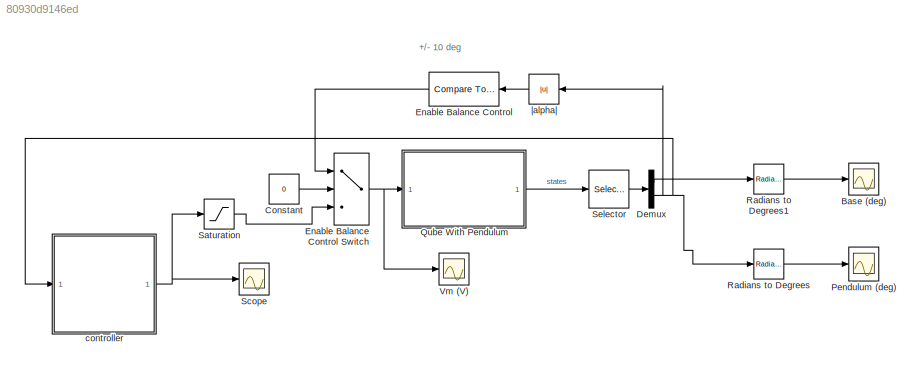
MODEL slx_80930d9146ed
KIND model
CONFIG AbsTol = auto
CONFIG EnableMultiTasking = on
CONFIG FixedStep = 0.001
CONFIG MaxStep = auto
CONFIG MinStep = auto
CONFIG RelTol = 1e-3
CONFIG SampleTimeConstraint = Unconstrained
CONFIG SolverName = ode4
CONFIG StartTime = 0.0
CONFIG StopTime = inf
BLOCK [Scope] Base (deg)
  ActiveDisplayYMaximum = 136.82373046875
  ActiveDisplayYMinimum = -67.74169921875
  DataLoggingVariableName = ScopeData1
  Floating = off
  GraphicalSettings = {"Style":{"BackgroundColor":[0.12941176470588237,0.12941176470588237,0.12941176470588237],"AxesColor":[0.07058823529411765,0.07058823529411765,0.07058823529411765],"LabelsColor":[0.8509803921568627,0.8509803921568627,0.8509803921568627],"PreserveColors":false,"Visible":[true],"LineStyle":["-"],"LineWidth":[1.5],"BarWidth":[0.9],"LineColor":["auto"],"LineFaceAlpha":[1],"LineEdgeAlpha":[1],"Marker":...<+2005ch>
  MultipleDisplayCache = [{"MaxYLimMag":136.82373046875,"MaxYLimReal":136.82373046875,"MinYLimMag":0,"MinYLimReal":-67.74169921875,"PlotAsMagnitudePhase":false,"ShowGrid":true,"ShowLegend":true,"Title":"%<SignalLabel>","YLabel":""}]
  NumInputPorts = 1
  ScopeFrameLocation = window
  ShowLegend = on
  WasSavedAsWebScope = on
  WindowPosition = [1.000000,1.000000,1536.000000,841.000000,]
BLOCK [Constant] Constant
  Value = 0
BLOCK [Demux] Demux
  Outputs = 2
BLOCK [Reference] Enable Balance Control  REF=simulink/Logic and Bit
Operations/Compare
To Constant
  SourceBlock = simulink/Logic and Bit\nOperations/Compare\nTo Constant
  SourceType = Compare To Constant
BLOCK [MultiPortSwitch] Enable Balance Control Switch
  DataPortOrder = Zero-based contiguous
  InputSameDT = off
  Inputs = 2
  SaturateOnIntegerOverflow = off
  zeroidx = on
BLOCK [Scope] Pendulum (deg)
  ActiveDisplayYMaximum = 4.458578839687549
  ActiveDisplayYMinimum = -3.1682330851925316
  DataLoggingVariableName = ScopeData2
  Floating = off
  GraphicalSettings = {"Style":{"BackgroundColor":[0.12941176470588237,0.12941176470588237,0.12941176470588237],"AxesColor":[0.07058823529411765,0.07058823529411765,0.07058823529411765],"LabelsColor":[0.8509803921568627,0.8509803921568627,0.8509803921568627],"PreserveColors":false,"Visible":[true],"LineStyle":["-"],"LineWidth":[1.5],"BarWidth":[0.9],"LineColor":["auto"],"LineFaceAlpha":[1],"LineEdgeAlpha":[1],"Marker":...<+2009ch>
  MaximizeAxes = On
  MultipleDisplayCache = [{"MaxYLimMag":1023.22265625,"MaxYLimReal":4.458578839687549,"MinYLimMag":0,"MinYLimReal":-3.1682330851925316,"PlotAsMagnitudePhase":false,"ShowGrid":true,"ShowLegend":true,"Title":"%<SignalLabel>","YLabel":""}]
  NumInputPorts = 1
  ScopeFrameLocation = window
  ShowLegend = on
  TimeSpan = 20
  TimeSpanOverrunAction = Scroll
  Visible = on
  WasSavedAsWebScope = on
  WindowPosition = [1.000000,1.000000,1536.000000,841.000000,]
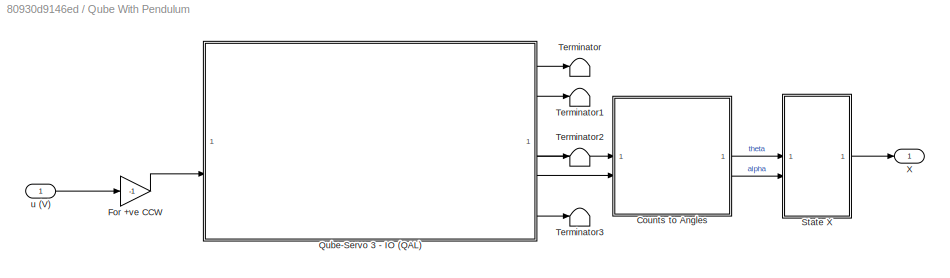
BLOCK [SubSystem] Qube With Pendulum
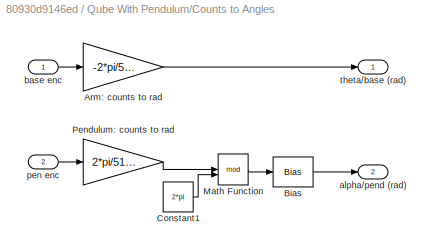
BLOCK [SubSystem] Qube With Pendulum/Counts to Angles
BLOCK [Gain] Qube With Pendulum/Counts to Angles/Arm: counts to rad
  Gain = -2*pi/512/4
BLOCK [Bias] Qube With Pendulum/Counts to Angles/Bias
  Bias = -pi
  SaturateOnIntegerOverflow = off
BLOCK [Constant] Qube With Pendulum/Counts to Angles/Constant1
  Value = 2*pi
BLOCK [Math] Qube With Pendulum/Counts to Angles/Math Function
  Operator = mod
  SignedPower = on
BLOCK [Gain] Qube With Pendulum/Counts to Angles/Pendulum: counts to rad
  Gain = 2*pi/512/4
BLOCK [Outport] Qube With Pendulum/Counts to Angles/alpha//pend (rad)
  Port = 2
  VectorParamsAs1DForOutWhenUnconnected = off
BLOCK [Inport] Qube With Pendulum/Counts to Angles/base enc
BLOCK [Inport] Qube With Pendulum/Counts to Angles/pen enc
  Port = 2
BLOCK [Outport] Qube With Pendulum/Counts to Angles/theta//base (rad)
  VectorParamsAs1DForOutWhenUnconnected = off
BLOCK [Gain] Qube With Pendulum/For +ve CCW
  Gain = -1
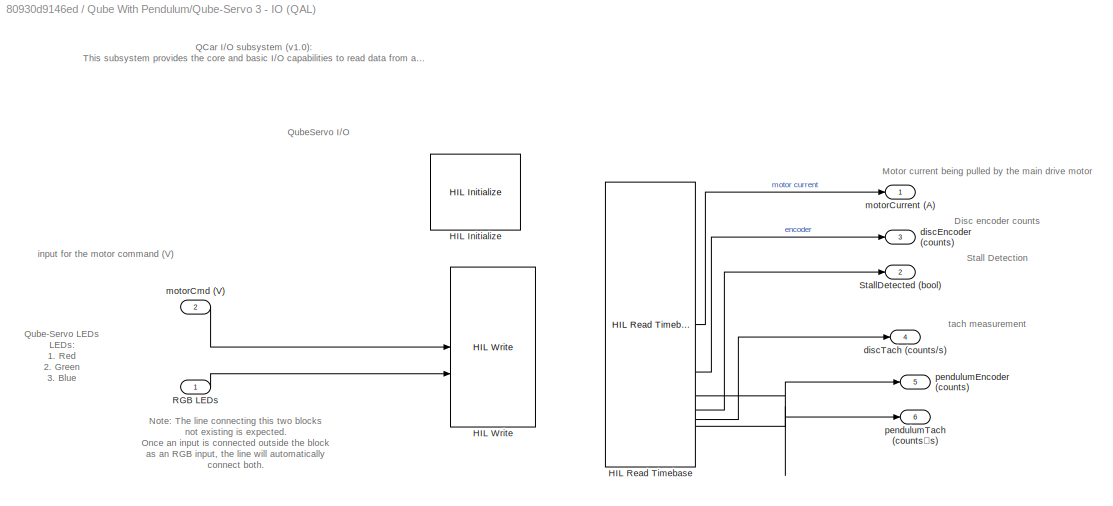
BLOCK [SubSystem] Qube With Pendulum/Qube-Servo 3 - IO (QAL)
  CopyFcn = set_param(gcbh,'LinkStatus','none');
  UserDataPersistent = on
BLOCK [Reference] Qube With Pendulum/Qube-Servo 3 - IO (QAL)/HIL Initialize  REF=quarc_library/Data Acquisition/Generic/Configuration/HIL Initialize
  AttributesFormatString = %<object_name> (%<board_type>-%<board_number>)
  SourceBlock = quarc_library/Data Acquisition/Generic/Configuration/HIL Initialize
  SourceProductName = QUARC Targets
  SourceType = HIL Initialize
  UserDataPersistent = on
BLOCK [Reference] Qube With Pendulum/Qube-Servo 3 - IO (QAL)/HIL Read Timebase  REF=quarc_library/Data Acquisition/Generic/Timebases/HIL Read
Timebase
  AttributesFormatString = (%<object_name>)
  SourceBlock = quarc_library/Data Acquisition/Generic/Timebases/HIL Read\nTimebase
  SourceProductName = QUARC Targets
  SourceType = HIL Read Timebase
  UserDataPersistent = on
BLOCK [Reference] Qube With Pendulum/Qube-Servo 3 - IO (QAL)/HIL Write  REF=quarc_library/Data Acquisition/Generic/Immediate I//O/HIL Write
  AttributesFormatString = (%<object_name>)
  SourceBlock = quarc_library/Data Acquisition/Generic/Immediate I//O/HIL Write
  SourceProductName = QUARC Targets
  SourceType = HIL Write
  UserDataPersistent = on
BLOCK [Inport] Qube With Pendulum/Qube-Servo 3 - IO (QAL)/RGB LEDs
BLOCK [Outport] Qube With Pendulum/Qube-Servo 3 - IO (QAL)/StallDetected (bool)
  Port = 2
  VectorParamsAs1DForOutWhenUnconnected = off
BLOCK [Outport] Qube With Pendulum/Qube-Servo 3 - IO (QAL)/discEncoder (counts)
  Port = 3
  VectorParamsAs1DForOutWhenUnconnected = off
BLOCK [Outport] Qube With Pendulum/Qube-Servo 3 - IO (QAL)/discTach (counts//s)
  Port = 4
  VectorParamsAs1DForOutWhenUnconnected = off
BLOCK [Inport] Qube With Pendulum/Qube-Servo 3 - IO (QAL)/motorCmd (V)
  Port = 2
BLOCK [Outport] Qube With Pendulum/Qube-Servo 3 - IO (QAL)/motorCurrent (A)
  VectorParamsAs1DForOutWhenUnconnected = off
BLOCK [Outport] Qube With Pendulum/Qube-Servo 3 - IO (QAL)/pendulumEncoder (counts)
  Port = 5
BLOCK [Outport] Qube With Pendulum/Qube-Servo 3 - IO (QAL)/pendulumTach (counts／s)
  Port = 6
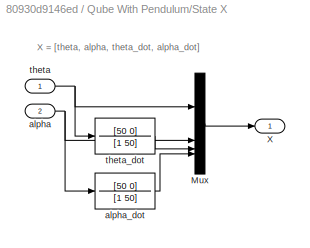
BLOCK [SubSystem] Qube With Pendulum/State X
BLOCK [Mux] Qube With Pendulum/State X/Mux
  DisplayOption = bar
BLOCK [Outport] Qube With Pendulum/State X/X
  VectorParamsAs1DForOutWhenUnconnected = off
BLOCK [Inport] Qube With Pendulum/State X/alpha
  Port = 2
BLOCK [TransferFcn] Qube With Pendulum/State X/alpha_dot
  Denominator = [1 50]
  Numerator = [50 0]
BLOCK [Inport] Qube With Pendulum/State X/theta
BLOCK [TransferFcn] Qube With Pendulum/State X/theta_dot
  Denominator = [1 50]
  Numerator = [50 0]
BLOCK [Terminator] Qube With Pendulum/Terminator
BLOCK [Terminator] Qube With Pendulum/Terminator1
BLOCK [Terminator] Qube With Pendulum/Terminator2
BLOCK [Terminator] Qube With Pendulum/Terminator3
BLOCK [Outport] Qube With Pendulum/X
BLOCK [Inport] Qube With Pendulum/u (V) 
BLOCK [Reference] Radians to Degrees  REF=simulink_extras/Transformations/Radians
to Degrees
  SourceBlock = simulink_extras/Transformations/Radians\nto Degrees
  SourceType = RadiansToDegrees
BLOCK [Reference] Radians to Degrees1  REF=simulink_extras/Transformations/Radians
to Degrees
  SourceBlock = simulink_extras/Transformations/Radians\nto Degrees
  SourceType = RadiansToDegrees
BLOCK [Saturate] Saturation
  LowerLimit = -10
  UpperLimit = 10
BLOCK [Scope] Scope
  ActiveDisplayYMaximum = 0.78532146435805394
  ActiveDisplayYMinimum = -0.78470787204289971
  DataLoggingVariableName = ScopeData1
  Floating = off
  GraphicalSettings = {"Style":{"BackgroundColor":[0.12941176470588237,0.12941176470588237,0.12941176470588237],"AxesColor":[0.07058823529411765,0.07058823529411765,0.07058823529411765],"LabelsColor":[0.8509803921568627,0.8509803921568627,0.8509803921568627],"PreserveColors":false,"Visible":[true],"LineStyle":["-"],"LineWidth":[1.5],"BarWidth":[0.9],"LineColor":["auto"],"LineFaceAlpha":[1],"LineEdgeAlpha":[1],"Marker":...<+2015ch>
  MultipleDisplayCache = [{"MaxYLimMag":0.78532146435805394,"MaxYLimReal":0.78532146435805394,"MinYLimMag":0,"MinYLimReal":-0.78470787204289971,"PlotAsMagnitudePhase":false,"ShowGrid":true,"ShowLegend":true,"Title":"%<SignalLabel>","YLabel":""}]
  NumInputPorts = 1
  ScopeFrameLocation = window
  ShowLegend = on
  WasSavedAsWebScope = on
  WindowPosition = [1.000000,69.000000,1536.000000,779.000000,]
BLOCK [Selector] Selector
  IndexOptions = Index vector (dialog)
  Indices = [1 2]
  InputPortWidth = 4
  OutputSizes = 1
BLOCK [Scope] Vm (V)
  ActiveDisplayYMaximum = 11.916728428675789
  ActiveDisplayYMinimum = -7.2505558580820963
  Floating = off
  GraphicalSettings = {"Style":{"BackgroundColor":[0.12941176470588237,0.12941176470588237,0.12941176470588237],"AxesColor":[0.07058823529411765,0.07058823529411765,0.07058823529411765],"LabelsColor":[0.8509803921568627,0.8509803921568627,0.8509803921568627],"PreserveColors":false,"Visible":[true],"LineStyle":["-"],"LineWidth":[1.5],"BarWidth":[0.9],"LineColor":["auto"],"LineFaceAlpha":[1],"LineEdgeAlpha":[1],"Marker":...<+2043ch>
  MultipleDisplayCache = [{"MaxYLimMag":11.916728428675789,"MaxYLimReal":11.916728428675789,"MinYLimMag":0,"MinYLimReal":-7.2505558580820963,"PlotAsMagnitudePhase":false,"ShowGrid":true,"ShowLegend":false,"Title":"%<SignalLabel>","YLabel":""}]
  NumInputPorts = 1
  ScopeFrameLocation = window
  WasSavedAsWebScope = on
  WindowPosition = [-44.000000,-521.000000,1536.000000,779.000000,]
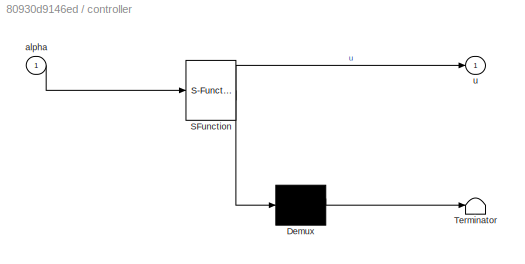
BLOCK [SubSystem] controller
  ErrorFcn = Stateflow.Translate.translate
  PermitHierarchicalResolution = ExplicitOnly
  SFBlockType = MATLAB Function
  TreatAsAtomicUnit = on
BLOCK [Demux] controller/ Demux 
  Outputs = 1
BLOCK [S-Function] controller/ SFunction 
  EnableBusSupport = off
  FunctionName = sf_sfun
  PortCounts = [1 2]
  SFcnIsStateOwnerBlock = off
  SFunctionDeploymentMode = off
  Tag = Stateflow S-Function 2
BLOCK [Terminator] controller/ Terminator 
BLOCK [Inport] controller/alpha
BLOCK [Outport] controller/u
BLOCK [Abs] |alpha|
  SaturateOnIntegerOverflow = off
ANNOTATION (root): +/- 10 deg
ANNOTATION Qube With Pendulum/Qube-Servo 3 - IO (QAL): QCar I/O subsystem (v1.0): This subsystem provides the core and basic I/O capabilities to read data from and write data to the Qube Servo. The HIL Initialize block configures the IO settings, and the HIL Write and Read blocks are used for the actual IO.
ANNOTATION Qube With Pendulum/Qube-Servo 3 - IO (QAL): Disc encoder counts
ANNOTATION Qube With Pendulum/Qube-Servo 3 - IO (QAL): Stall Detection
ANNOTATION Qube With Pendulum/Qube-Servo 3 - IO (QAL): tach measurement
ANNOTATION Qube With Pendulum/Qube-Servo 3 - IO (QAL): Motor current being pulled by the main drive motor
ANNOTATION Qube With Pendulum/Qube-Servo 3 - IO (QAL): Qube-Servo LEDs LEDs: 1. Red 2. Green 3. Blue
ANNOTATION Qube With Pendulum/Qube-Servo 3 - IO (QAL): input for the motor command (V)
ANNOTATION Qube With Pendulum/Qube-Servo 3 - IO (QAL): Note: The line connecting this two blocks not existing is expected. Once an input is connected outside the block as an RGB input, the line will automatically connect both.
ANNOTATION Qube With Pendulum/Qube-Servo 3 - IO (QAL): QubeServo I/O
ANNOTATION Qube With Pendulum/State X: X = [theta, alpha, theta_dot, alpha_dot]
LINE Constant:1 -> Enable Balance Control Switch:2
LINE Demux:1 -> Radians to Degrees1:1
NET Demux:2 -> Radians to Degrees:1, controller:1, |alpha|:1
NET Enable Balance Control Switch:1 -> Qube With Pendulum:1, Vm (V):1
LINE Enable Balance Control:1 -> Enable Balance Control Switch:1
LINE Qube With Pendulum/Counts to Angles/Arm: counts to rad:1 -> Qube With Pendulum/Counts to Angles/theta//base (rad):1
LINE Qube With Pendulum/Counts to Angles/Bias:1 -> Qube With Pendulum/Counts to Angles/alpha//pend (rad):1
LINE Qube With Pendulum/Counts to Angles/Constant1:1 -> Qube With Pendulum/Counts to Angles/Math Function:2
LINE Qube With Pendulum/Counts to Angles/Math Function:1 -> Qube With Pendulum/Counts to Angles/Bias:1
LINE Qube With Pendulum/Counts to Angles/Pendulum: counts to rad:1 -> Qube With Pendulum/Counts to Angles/Math Function:1
LINE Qube With Pendulum/Counts to Angles/base enc:1 -> Qube With Pendulum/Counts to Angles/Arm: counts to rad:1
LINE Qube With Pendulum/Counts to Angles/pen enc:1 -> Qube With Pendulum/Counts to Angles/Pendulum: counts to rad:1
LINE Qube With Pendulum/Counts to Angles:1 -> Qube With Pendulum/State X:1
LINE Qube With Pendulum/Counts to Angles:2 -> Qube With Pendulum/State X:2
LINE Qube With Pendulum/For +ve CCW:1 -> Qube With Pendulum/Qube-Servo 3 - IO (QAL):2
LINE Qube With Pendulum/Qube-Servo 3 - IO (QAL):1 -> Qube With Pendulum/Terminator:1
LINE Qube With Pendulum/Qube-Servo 3 - IO (QAL):2 -> Qube With Pendulum/Terminator1:1
LINE Qube With Pendulum/Qube-Servo 3 - IO (QAL):3 -> Qube With Pendulum/Counts to Angles:1
LINE Qube With Pendulum/Qube-Servo 3 - IO (QAL):4 -> Qube With Pendulum/Terminator2:1
LINE Qube With Pendulum/Qube-Servo 3 - IO (QAL):5 -> Qube With Pendulum/Counts to Angles:2
LINE Qube With Pendulum/Qube-Servo 3 - IO (QAL):6 -> Qube With Pendulum/Terminator3:1
LINE Qube With Pendulum/State X/Mux:1 -> Qube With Pendulum/State X/X:1
NET Qube With Pendulum/State X/alpha:1 -> Qube With Pendulum/State X/Mux:2, Qube With Pendulum/State X/alpha_dot:1
LINE Qube With Pendulum/State X/alpha_dot:1 -> Qube With Pendulum/State X/Mux:4
NET Qube With Pendulum/State X/theta:1 -> Qube With Pendulum/State X/Mux:1, Qube With Pendulum/State X/theta_dot:1
LINE Qube With Pendulum/State X/theta_dot:1 -> Qube With Pendulum/State X/Mux:3
LINE Qube With Pendulum/State X:1 -> Qube With Pendulum/X:1
LINE Qube With Pendulum/u (V) :1 -> Qube With Pendulum/For +ve CCW:1
LINE Qube With Pendulum:1 -> Selector:1
LINE Radians to Degrees1:1 -> Base (deg):1
LINE Radians to Degrees:1 -> Pendulum (deg):1
LINE Saturation:1 -> Enable Balance Control Switch:3
LINE Selector:1 -> Demux:1
NET controller:1 -> Saturation:1, Scope:1
LINE |alpha|:1 -> Enable Balance Control:1
note: NET lines group one-source signal fan-out (src -> all destinations, sorted); 1:1 wires keep LINE
CHART controller states=1 transitions=1
  STATE_LABEL 'eML_blk_kernel()'
  STATE_LABEL 'SCRIPT:\n%%\nfunction u = controller(alpha)\n% theta -> base angle (rad)\n% alpha -> pendulum angle (rad)\n% thetadot -> base angular velocity (rad)\n% alphadot -> pendulum angular velocity (rad)\n% u -> output voltage\n\n    Kp = 40;\n    Ki = 0;\n    Kd = 0.21;\n    ts = 0.001;\n    \n    target = 0;\n    \n    persistent integral_sum prev_err\n    if isempty(integral_sum)\n        integral_sum = 0;\n        prev_...<+275ch>'
CHART  states=0 transitions=0
